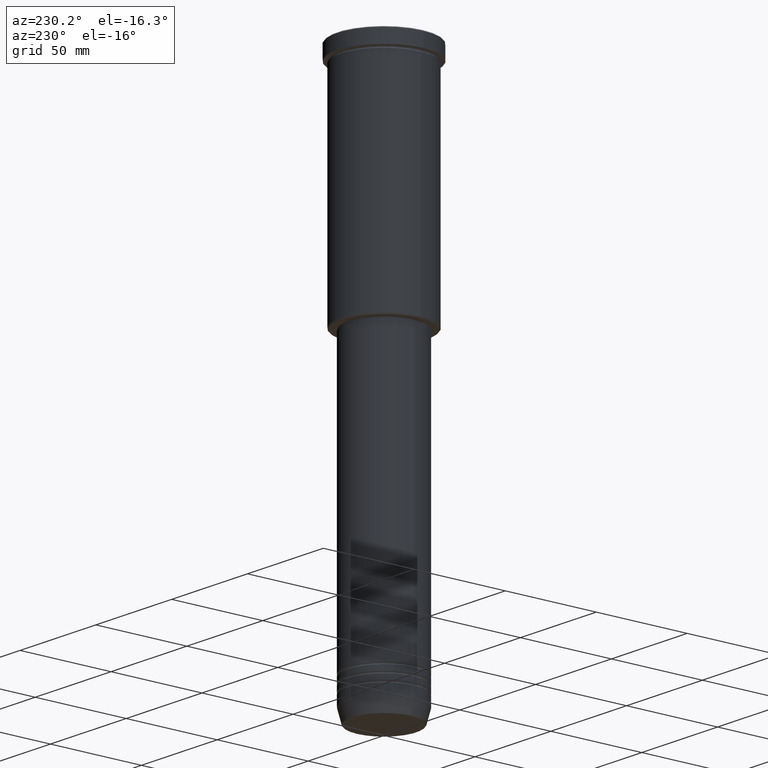
[diagram: clean part render]
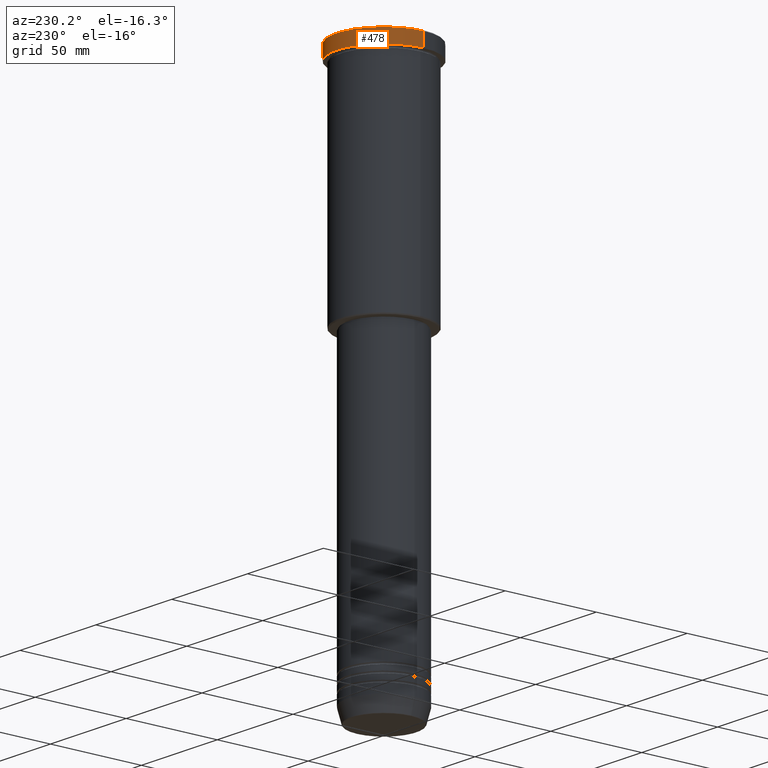
[diagram: same view with one face highlighted and labeled with its STEP entity id]
A machine part, auxiliary view. The second image highlights one B-rep face of the part: STEP entity #478.
In plain terms, the highlighted cylindrical surface (partial cylindrical patch) has radius 26 mm, axis along (-0, -0, 1).
Its self-contained STEP definition (entity closure, byte-faithful):
#32 = CARTESIAN_POINT ( 'NONE',  ( 0.000000000000000000, 0.000000000000000000, -0.4999999999999692468 ) ) ;
#37 = DIRECTION ( 'NONE',  ( 1.000000000000000000, 0.000000000000000000, 0.000000000000000000 ) ) ;
#42 = AXIS2_PLACEMENT_3D ( 'NONE', #887, #535, #69 ) ;
#44 = DIRECTION ( 'NONE',  ( -0.000000000000000000, -0.000000000000000000, 1.000000000000000000 ) ) ;
#69 = DIRECTION ( 'NONE',  ( 1.000000000000000000, 0.000000000000000000, 0.000000000000000000 ) ) ;
#87 = AXIS2_PLACEMENT_3D ( 'NONE', #32, #947, #231 ) ;
#108 = LINE ( 'NONE', #190, #545 ) ;
#137 = ORIENTED_EDGE ( 'NONE', *, *, #941, .T. ) ;
#143 = CIRCLE ( 'NONE', #87, 26.00000000000000000 ) ;
#190 = CARTESIAN_POINT ( 'NONE',  ( -26.00000000000000000, 3.184081677783118191E-15, 0.000000000000000000 ) ) ;
#209 = EDGE_CURVE ( 'NONE', #1000, #1050, #475, .T. ) ;
#231 = DIRECTION ( 'NONE',  ( 1.000000000000000000, 0.000000000000000000, 0.000000000000000000 ) ) ;
#270 = VERTEX_POINT ( 'NONE', #288 ) ;
#284 = DIRECTION ( 'NONE',  ( -0.000000000000000000, -0.000000000000000000, 1.000000000000000000 ) ) ;
#288 = CARTESIAN_POINT ( 'NONE',  ( -26.00000000000000000, 3.184081677783118191E-15, -0.4999999999999692468 ) ) ;
#322 = AXIS2_PLACEMENT_3D ( 'NONE', #595, #44, #37 ) ;
#323 = CARTESIAN_POINT ( 'NONE',  ( -26.00000000000000000, 3.184081677783118191E-15, -7.999999999999992895 ) ) ;
#354 = CIRCLE ( 'NONE', #322, 26.00000000000000000 ) ;
#357 = VECTOR ( 'NONE', #469, 1000.000000000000000 ) ;
#455 = ORIENTED_EDGE ( 'NONE', *, *, #1129, .T. ) ;
#466 = CARTESIAN_POINT ( 'NONE',  ( 26.00000000000000000, 0.000000000000000000, -0.4999999999999692468 ) ) ;
#469 = DIRECTION ( 'NONE',  ( -0.000000000000000000, -0.000000000000000000, 1.000000000000000000 ) ) ;
#475 = LINE ( 'NONE', #1027, #357 ) ;
#478 = ADVANCED_FACE ( 'NONE', ( #1070 ), #1175, .T. ) ;
#535 = DIRECTION ( 'NONE',  ( -0.000000000000000000, -0.000000000000000000, 1.000000000000000000 ) ) ;
#545 = VECTOR ( 'NONE', #284, 1000.000000000000000 ) ;
#595 = CARTESIAN_POINT ( 'NONE',  ( 0.000000000000000000, 0.000000000000000000, -7.999999999999992895 ) ) ;
#669 = CARTESIAN_POINT ( 'NONE',  ( 26.00000000000000000, 0.000000000000000000, -7.999999999999992895 ) ) ;
#760 = ORIENTED_EDGE ( 'NONE', *, *, #1123, .T. ) ;
#799 = ORIENTED_EDGE ( 'NONE', *, *, #209, .F. ) ;
#887 = CARTESIAN_POINT ( 'NONE',  ( 0.000000000000000000, 0.000000000000000000, 0.000000000000000000 ) ) ;
#941 = EDGE_CURVE ( 'NONE', #1158, #270, #108, .T. ) ;
#947 = DIRECTION ( 'NONE',  ( 0.000000000000000000, 0.000000000000000000, -1.000000000000000000 ) ) ;
#1000 = VERTEX_POINT ( 'NONE', #669 ) ;
#1027 = CARTESIAN_POINT ( 'NONE',  ( 26.00000000000000000, 0.000000000000000000, 0.000000000000000000 ) ) ;
#1037 = EDGE_LOOP ( 'NONE', ( #455, #137, #760, #799 ) ) ;
#1050 = VERTEX_POINT ( 'NONE', #466 ) ;
#1070 = FACE_OUTER_BOUND ( 'NONE', #1037, .T. ) ;
#1123 = EDGE_CURVE ( 'NONE', #270, #1050, #143, .T. ) ;
#1129 = EDGE_CURVE ( 'NONE', #1000, #1158, #354, .T. ) ;
#1158 = VERTEX_POINT ( 'NONE', #323 ) ;
#1175 = CYLINDRICAL_SURFACE ( 'NONE', #42, 26.00000000000000000 ) ;